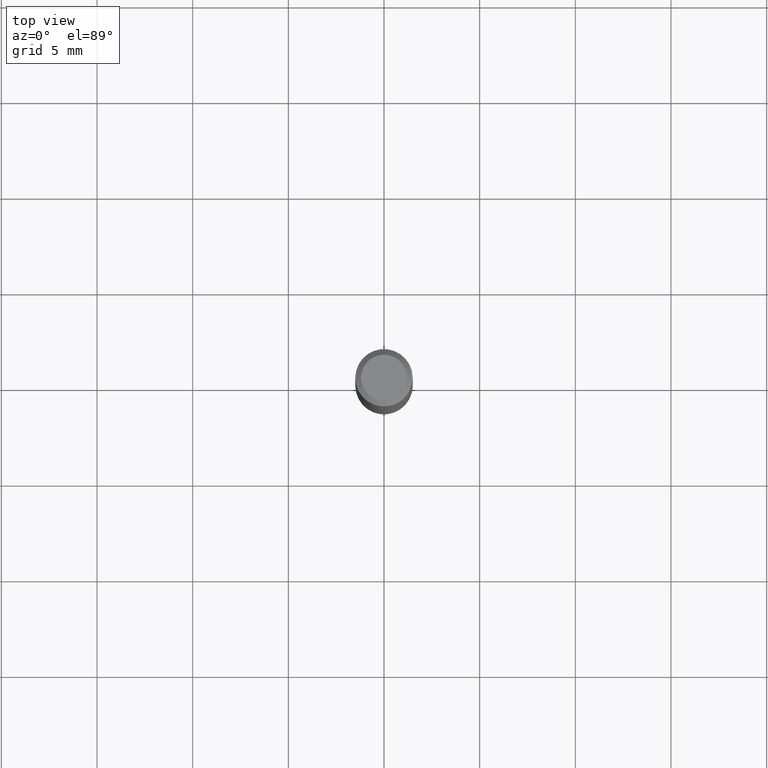
[diagram: clean part render]
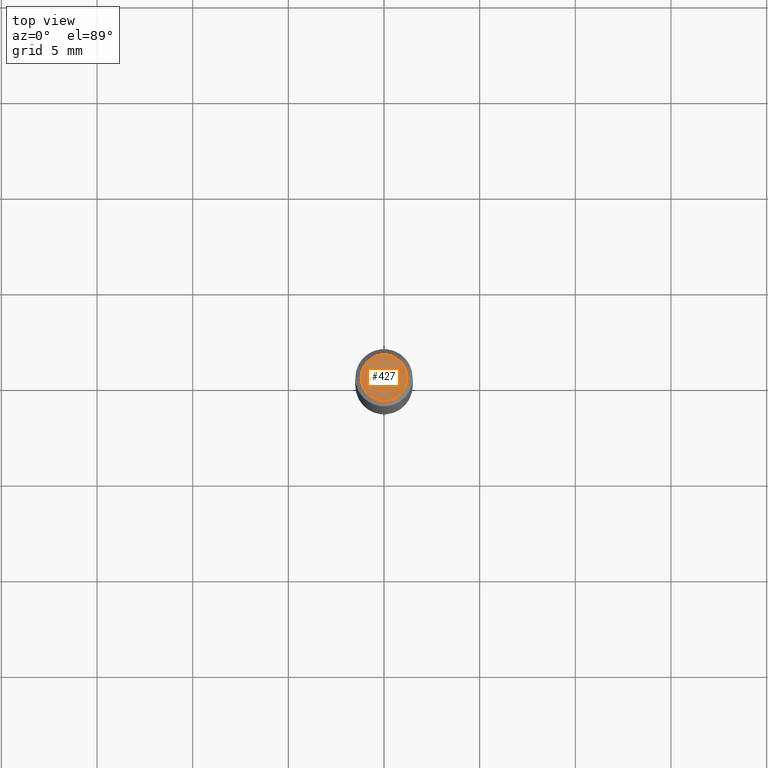
[diagram: same view with one face highlighted and labeled with its STEP entity id]
A machine part, top view. The second image highlights one B-rep face of the part: STEP entity #427.
In plain terms, the highlighted planar face has unit normal (0, -0, -1).
Its self-contained STEP definition (entity closure, byte-faithful):
#6 = EDGE_LOOP ( 'NONE', ( #315, #422 ) ) ;
#18 = DIRECTION ( 'NONE',  ( 1.000000000000000000, -6.982962677686266711E-15, 4.876185090822587894E-29 ) ) ;
#31 = AXIS2_PLACEMENT_3D ( 'NONE', #154, #474, #18 ) ;
#55 = CARTESIAN_POINT ( 'NONE',  ( 0.04724000000000000421, -3.852183633974369838E-16, -3.380025165621689721E-19 ) ) ;
#59 = DIRECTION ( 'NONE',  ( -2.445468806185136597E-29, 3.491481338843145583E-15, 1.000000000000000000 ) ) ;
#61 = AXIS2_PLACEMENT_3D ( 'NONE', #424, #59, #348 ) ;
#78 = AXIS2_PLACEMENT_3D ( 'NONE', #415, #378, #143 ) ;
#84 = VERTEX_POINT ( 'NONE', #55 ) ;
#104 = EDGE_CURVE ( 'NONE', #84, #172, #230, .T. ) ;
#108 = EDGE_CURVE ( 'NONE', #172, #84, #369, .T. ) ;
#114 = FACE_OUTER_BOUND ( 'NONE', #6, .T. ) ;
#143 = DIRECTION ( 'NONE',  ( -1.000000000000000000, 6.982962677686265922E-15, -4.876176775795935793E-29 ) ) ;
#154 = CARTESIAN_POINT ( 'NONE',  ( 8.265746106709734507E-48, -1.180129479067563789E-33, -3.380025165646692144E-19 ) ) ;
#172 = VERTEX_POINT ( 'NONE', #471 ) ;
#230 = CIRCLE ( 'NONE', #61, 0.04724000000000000421 ) ;
#260 = PLANE ( 'NONE',  #78 ) ;
#315 = ORIENTED_EDGE ( 'NONE', *, *, #108, .T. ) ;
#348 = DIRECTION ( 'NONE',  ( 1.000000000000000000, -6.982962677686266711E-15, 4.876185090822587894E-29 ) ) ;
#369 = CIRCLE ( 'NONE', #31, 0.04724000000000000421 ) ;
#378 = DIRECTION ( 'NONE',  ( 2.438088387897960049E-29, -3.491481338843145188E-15, -1.000000000000000000 ) ) ;
#415 = CARTESIAN_POINT ( 'NONE',  ( 4.132873053354867254E-48, -5.900647395337818946E-34, -1.690012582823346072E-19 ) ) ;
#422 = ORIENTED_EDGE ( 'NONE', *, *, #104, .T. ) ;
#424 = CARTESIAN_POINT ( 'NONE',  ( 8.265746106709734507E-48, -1.180129479067563789E-33, -3.380025165646692144E-19 ) ) ;
#427 = ADVANCED_FACE ( 'NONE', ( #114 ), #260, .F. ) ;
#471 = CARTESIAN_POINT ( 'NONE',  ( -0.04724000000000000421, 3.504923541997677355E-16, -3.380025165670481712E-19 ) ) ;
#474 = DIRECTION ( 'NONE',  ( -2.445468806185136597E-29, 3.491481338843145583E-15, 1.000000000000000000 ) ) ;